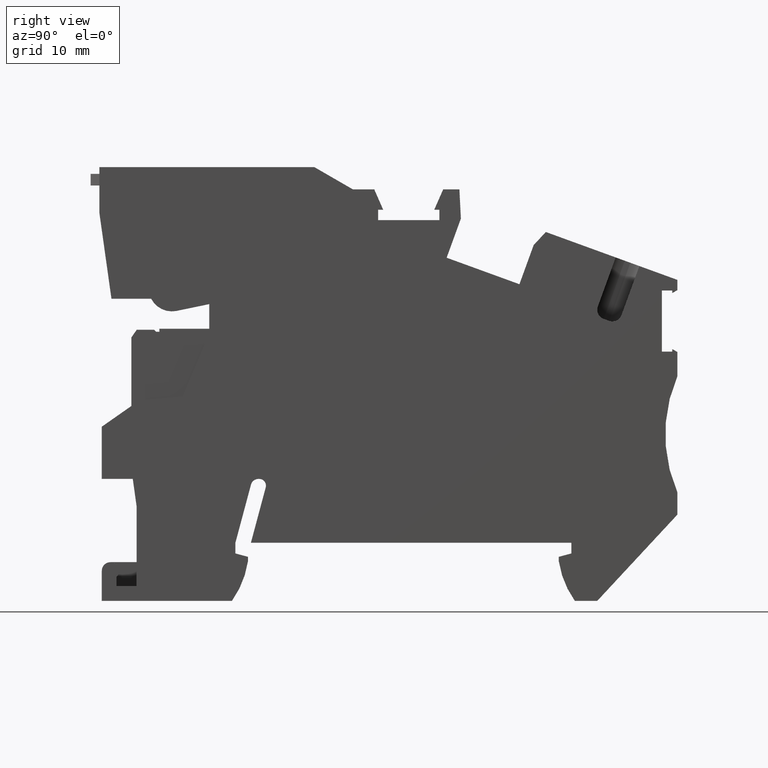
[diagram: clean part render]
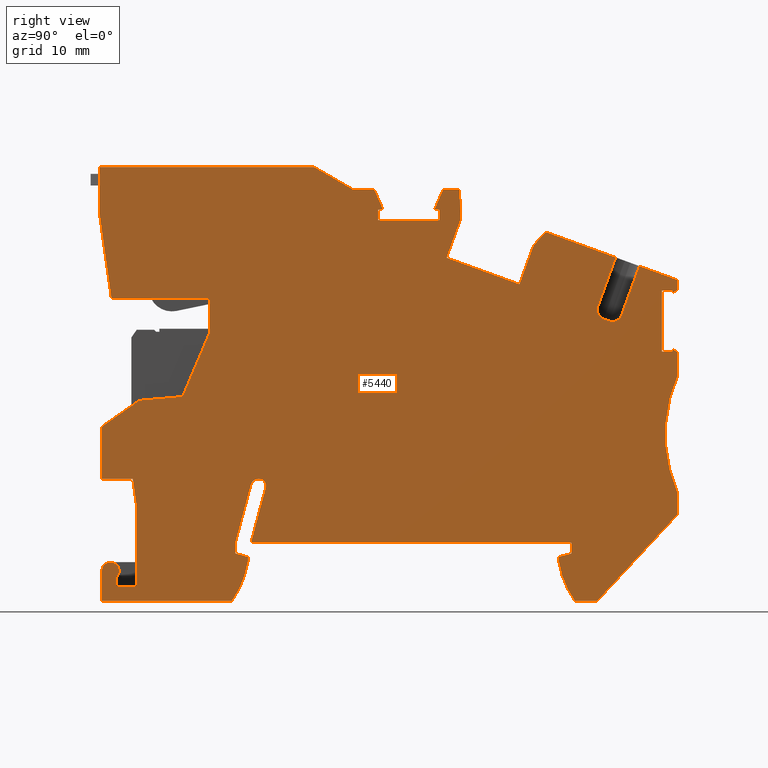
[diagram: same view with one face highlighted and labeled with its STEP entity id]
A machine part, right view. The second image highlights one B-rep face of the part: STEP entity #5440.
In plain terms, the highlighted planar face has unit normal (1, -0, -0).
Its self-contained STEP definition (entity closure, byte-faithful):
#10=CARTESIAN_POINT('',(36.8692538360223,4.76087886167959,
-1.4121310698556E-7));
#20=DIRECTION('',(-1.46818254392172E-27,-1.29932758798692E-27,1.));
#30=DIRECTION('',(0.992546151641322,0.121869343405147,
1.61558713389263E-27));
#40=AXIS2_PLACEMENT_3D('',#10,#20,#30);
#50=PLANE('',#40);
#60=CARTESIAN_POINT('',(55.889754438691,0.,-1.4121310698556E-7));
#70=DIRECTION('',(-0.586197188888753,-0.810168411960701,0.));
#80=VECTOR('',#70,1.);
#90=LINE('',#60,#80);
#100=CARTESIAN_POINT('',(63.534747480636,10.5659528732721,
-1.4121310698556E-7));
#110=VERTEX_POINT('',#100);
#120=CARTESIAN_POINT('',(56.4045203996391,0.71144510587516,
-1.4121310698556E-7));
#130=VERTEX_POINT('',#120);
#140=EDGE_CURVE('',#110,#130,#90,.T.);
#150=ORIENTED_EDGE('',*,*,#140,.F.);
#160=CARTESIAN_POINT('',(-2.83984688191907E-5,-6.21416265122162,
-1.4121310698556E-7));
#170=DIRECTION('',(-0.992546151641334,-0.121869343405055,
-1.61558713389257E-27));
#180=VECTOR('',#170,1.);
#190=LINE('',#160,#180);
#200=CARTESIAN_POINT('',(54.1087467529175,0.429559546730218,
-1.4121310698556E-7));
#210=VERTEX_POINT('',#200);
#220=EDGE_CURVE('',#130,#210,#190,.T.);
#230=ORIENTED_EDGE('',*,*,#220,.F.);
#240=CARTESIAN_POINT('',(61.1139653072747,6.84648349872392,
-1.4121310698556E-7));
#250=DIRECTION('',(1.47043672733197E-27,1.29373188456246E-27,-1.));
#260=DIRECTION('',(-0.992546151641326,-0.121869343405112,
-1.61558713389263E-27));
#270=AXIS2_PLACEMENT_3D('',#240,#250,#260);
#280=CIRCLE('',#270,9.499999999999);
#290=CARTESIAN_POINT('',(51.9625043062499,4.29682439470574,
-1.4121310698556E-7));
#300=VERTEX_POINT('',#290);
#310=EDGE_CURVE('',#210,#300,#280,.T.);
#320=ORIENTED_EDGE('',*,*,#310,.F.);
#330=CARTESIAN_POINT('',(52.4900884309633,-3.48688567086697E-6,
-1.4121310698556E-7));
#340=DIRECTION('',(-0.121869343404427,0.992546151641411,
1.1107161545523E-27));
#350=VECTOR('',#340,1.);
#360=LINE('',#330,#350);
#370=CARTESIAN_POINT('',(51.9074600613178,4.74512379430182,
-1.4121310698556E-7));
#380=VERTEX_POINT('',#370);
#390=EDGE_CURVE('',#300,#380,#360,.T.);
#400=ORIENTED_EDGE('',*,*,#390,.F.);
#410=CARTESIAN_POINT('',(-2.83984691762385E-5,-16.2268628606818,
-1.4121310698556E-7));
#420=DIRECTION('',(0.927183854566826,0.374606593415818,
1.84801183174807E-27));
#430=VECTOR('',#420,1.);
#440=LINE('',#410,#430);
#450=CARTESIAN_POINT('',(53.15531882866,5.24929146244623,
-1.4121310698556E-7));
#460=VERTEX_POINT('',#450);
#470=EDGE_CURVE('',#380,#460,#440,.T.);
#480=ORIENTED_EDGE('',*,*,#470,.F.);
#490=CARTESIAN_POINT('',(53.7998512040633,-3.48688571705225E-6,
-1.4121310698556E-7));
#500=DIRECTION('',(-0.121869343405112,0.992546151641326,
1.11071615455118E-27));
#510=VECTOR('',#500,1.);
#520=LINE('',#490,#510);
#530=CARTESIAN_POINT('',(53.0212625509141,6.34109222925396,
-1.4121310698556E-7));
#540=VERTEX_POINT('',#530);
#550=EDGE_CURVE('',#460,#540,#520,.T.);
#560=ORIENTED_EDGE('',*,*,#550,.F.);
#570=CARTESIAN_POINT('',(-2.83984678484117E-5,-0.169103698471897,
-1.4121310698556E-7));
#580=DIRECTION('',(-0.992546151641326,-0.121869343405112,
-1.61558713389263E-27));
#590=VECTOR('',#580,1.);
#600=LINE('',#570,#590);
#610=CARTESIAN_POINT('',(20.1679849315951,2.30721696254584,
-1.4121310698556E-7));
#620=VERTEX_POINT('',#610);
#630=EDGE_CURVE('',#540,#620,#600,.T.);
#640=ORIENTED_EDGE('',*,*,#630,.F.);
#650=CARTESIAN_POINT('',(19.8437262437901,-3.48688005402664E-6,
-1.4121310698556E-7));
#660=DIRECTION('',(0.139173100960161,0.990268068741557,
1.49101413863156E-27));
#670=VECTOR('',#660,1.);
#680=LINE('',#650,#670);
#690=CARTESIAN_POINT('',(20.9919683262173,8.17016346038412,
-1.4121310698556E-7));
#700=VERTEX_POINT('',#690);
#710=EDGE_CURVE('',#620,#700,#680,.T.);
#720=ORIENTED_EDGE('',*,*,#710,.F.);
#730=CARTESIAN_POINT('',(20.2987806780982,8.26758463105624,
-1.4121310698556E-7));
#740=DIRECTION('',(-1.47043672733197E-27,-1.29373188456246E-27,1.));
#750=DIRECTION('',(1.,-3.56659146660832E-14,1.46818254392172E-27));
#760=AXIS2_PLACEMENT_3D('',#730,#740,#750);
#770=CIRCLE('',#760,0.7);
#780=CARTESIAN_POINT('',(20.2134721377148,8.96236693720519,
-1.4121310698556E-7));
#790=VERTEX_POINT('',#780);
#800=EDGE_CURVE('',#700,#790,#770,.T.);
#810=ORIENTED_EDGE('',*,*,#800,.F.);
#820=CARTESIAN_POINT('',(-2.8398459382295E-5,6.48046114956115,
-1.4121310698556E-7));
#830=DIRECTION('',(0.992546151641326,0.121869343405112,
1.61558713389263E-27));
#840=VECTOR('',#830,1.);
#850=LINE('',#820,#840);
#860=CARTESIAN_POINT('',(20.1401421842377,8.95336315106648,
-1.4121310698556E-7));
#870=VERTEX_POINT('',#860);
#880=EDGE_CURVE('',#870,#790,#850,.T.);
#890=ORIENTED_EDGE('',*,*,#880,.T.);
#900=CARTESIAN_POINT('',(20.2376376589615,8.15932622975338,
-1.4121310698556E-7));
#910=DIRECTION('',(-1.47043672733197E-27,-1.29373188456246E-27,1.));
#920=DIRECTION('',(1.,-3.56659146660832E-14,1.46818254392172E-27));
#930=AXIS2_PLACEMENT_3D('',#900,#910,#920);
#940=CIRCLE('',#930,0.8);
#950=CARTESIAN_POINT('',(19.4454232039683,8.27066471052162,
-1.4121310698556E-7));
#960=VERTEX_POINT('',#950);
#970=EDGE_CURVE('',#870,#960,#940,.T.);
#980=ORIENTED_EDGE('',*,*,#970,.F.);
#990=CARTESIAN_POINT('',(18.2830565919569,-3.48687999363051E-6,
-1.4121310698556E-7));
#1000=DIRECTION('',(0.139173100960302,0.990268068741537,
1.49101413863174E-27));
#1010=VECTOR('',#1000,1.);
#1020=LINE('',#990,#1010);
#1030=CARTESIAN_POINT('',(18.5799110889686,2.11222601310684,
-1.4121310698556E-7));
#1040=VERTEX_POINT('',#1030);
#1050=EDGE_CURVE('',#1040,#960,#1020,.T.);
#1060=ORIENTED_EDGE('',*,*,#1050,.T.);
#1070=CARTESIAN_POINT('',(18.8392602606505,-3.48688001139408E-6,
-1.4121310698556E-7));
#1080=DIRECTION('',(0.121869343405112,-0.992546151641326,
-1.11071615455118E-27));
#1090=VECTOR('',#1080,1.);
#1100=LINE('',#1070,#1090);
#1110=CARTESIAN_POINT('',(18.7139673667152,1.02042524629326,
-1.4121310698556E-7));
#1120=VERTEX_POINT('',#1110);
#1130=EDGE_CURVE('',#1040,#1120,#1100,.T.);
#1140=ORIENTED_EDGE('',*,*,#1130,.F.);
#1150=CARTESIAN_POINT('',(-2.83984594835474E-5,3.65050583175063,
-1.4121310698556E-7));
#1160=DIRECTION('',(0.990268068741551,-0.139173100960206,
1.27306284274619E-27));
#1170=VECTOR('',#1160,1.);
#1180=LINE('',#1150,#1170);
#1190=CARTESIAN_POINT('',(20.04672859364,0.833117871002074,
-1.4121310698556E-7));
#1200=VERTEX_POINT('',#1190);
#1210=EDGE_CURVE('',#1120,#1200,#1180,.T.);
#1220=ORIENTED_EDGE('',*,*,#1210,.F.);
#1230=CARTESIAN_POINT('',(20.1490230337469,-3.48688006113207E-6,
-1.4121310698556E-7));
#1240=DIRECTION('',(0.121869343405737,-0.99254615164125,
-1.11071615455017E-27));
#1250=VECTOR('',#1240,1.);
#1260=LINE('',#1230,#1250);
#1270=CARTESIAN_POINT('',(20.1017728385727,0.384818471405851,
-1.4121310698556E-7));
#1280=VERTEX_POINT('',#1270);
#1290=EDGE_CURVE('',#1200,#1280,#1260,.T.);
#1300=ORIENTED_EDGE('',*,*,#1290,.F.);
#1310=CARTESIAN_POINT('',(10.6053309765199,0.64480301062201,
-1.4121310698556E-7));
#1320=DIRECTION('',(-1.47043672733197E-27,-1.29373188456246E-27,1.));
#1330=DIRECTION('',(0.992546151641326,0.121869343405112,
1.61558713389263E-27));
#1340=AXIS2_PLACEMENT_3D('',#1310,#1320,#1330);
#1350=CIRCLE('',#1340,9.49999999999899);
#1360=CARTESIAN_POINT('',(18.9548590108741,-3.88679511846146,
-1.4121310698556E-7));
#1370=VERTEX_POINT('',#1360);
#1380=EDGE_CURVE('',#1370,#1280,#1350,.T.);
#1390=ORIENTED_EDGE('',*,*,#1380,.T.);
#1400=CARTESIAN_POINT('',(-2.83984599462883E-5,-6.21416265122058,
-1.4121310698556E-7));
#1410=DIRECTION('',(0.992546151641325,0.121869343405127,
1.61558713389265E-27));
#1420=VECTOR('',#1410,1.);
#1430=LINE('',#1400,#1420);
#1440=CARTESIAN_POINT('',(5.6139902561052,-5.52484783057877,
-1.4121310698556E-7));
#1450=VERTEX_POINT('',#1440);
#1460=EDGE_CURVE('',#1450,#1370,#1430,.T.);
#1470=ORIENTED_EDGE('',*,*,#1460,.T.);
#1480=CARTESIAN_POINT('',(5.04037038539804,-0.853088885553358,
-1.4121310698556E-7));
#1490=DIRECTION('',(0.121869343404729,-0.992546151641373,
-1.11071615455181E-27));
#1500=VECTOR('',#1490,1.);
#1510=LINE('',#1480,#1500);
#1520=CARTESIAN_POINT('',(5.2361952915502,-2.44795476048773,
-1.4121310698556E-7));
#1530=VERTEX_POINT('',#1520);
#1540=EDGE_CURVE('',#1530,#1450,#1510,.T.);
#1550=ORIENTED_EDGE('',*,*,#1540,.T.);
#1560=CARTESIAN_POINT('',(6.12948682808219,-2.33827235141673,
-1.4121310698556E-7));
#1570=DIRECTION('',(3.53960909945283E-14,4.34609349043523E-15,1.));
#1580=DIRECTION('',(-1.,3.56659146660832E-14,3.53960909945281E-14));
#1590=AXIS2_PLACEMENT_3D('',#1560,#1570,#1580);
#1600=CIRCLE('',#1590,0.89999999999984);
#1610=CARTESIAN_POINT('',(6.80676695993457,-2.9309709451368,
-1.41213128382706E-7));
#1620=VERTEX_POINT('',#1610);
#1630=EDGE_CURVE('',#1620,#1530,#1600,.T.);
#1640=ORIENTED_EDGE('',*,*,#1630,.T.);
#1650=CARTESIAN_POINT('',(2.76695388729833,29.9706662221065,
-1.4121310698556E-7));
#1660=DIRECTION('',(0.121869343407215,-0.992546151641068,
-1.11071615454776E-27));
#1670=VECTOR('',#1660,1.);
#1680=LINE('',#1650,#1670);
#1690=CARTESIAN_POINT('',(6.92001145308142,-3.85327332836928,
-1.4121310698556E-7));
#1700=VERTEX_POINT('',#1690);
#1710=EDGE_CURVE('',#1620,#1700,#1680,.T.);
#1720=ORIENTED_EDGE('',*,*,#1710,.F.);
#1730=CARTESIAN_POINT('',(9.07053834346899,-3.58922182842323,
-1.4121310698556E-7));
#1740=DIRECTION('',(0.992546151641326,0.121869343405112,
1.61558713389263E-27));
#1750=VECTOR('',#1740,1.);
#1760=LINE('',#1730,#1750);
#1770=CARTESIAN_POINT('',(9.00435837147232,-3.59734770722541,
-1.4121310698556E-7));
#1780=VERTEX_POINT('',#1770);
#1790=EDGE_CURVE('',#1700,#1780,#1760,.T.);
#1800=ORIENTED_EDGE('',*,*,#1790,.F.);
#1810=CARTESIAN_POINT('',(8.56265961282526,3.5775826745521E-12,
-1.4121310698556E-7));
#1820=DIRECTION('',(-0.121869343405112,0.992546151641326,
1.11071615455118E-27));
#1830=VECTOR('',#1820,1.);
#1840=LINE('',#1810,#1830);
#1850=CARTESIAN_POINT('',(7.9984608500192,4.59503017853219,
-1.4121310698556E-7));
#1860=VERTEX_POINT('',#1850);
#1870=EDGE_CURVE('',#1780,#1860,#1840,.T.);
#1880=ORIENTED_EDGE('',*,*,#1870,.F.);
#1890=CARTESIAN_POINT('',(9.22969547505618,3.5527136788005E-12,
-1.4121310698556E-7));
#1900=DIRECTION('',(0.258819045005162,-0.965925826315156,
-8.75060470169217E-28));
#1910=VECTOR('',#1900,1.);
#1920=LINE('',#1890,#1910);
#1930=CARTESIAN_POINT('',(7.25458421464846,7.37121557741849,
-1.4121310698556E-7));
#1940=VERTEX_POINT('',#1930);
#1950=EDGE_CURVE('',#1940,#1860,#1920,.T.);
#1960=ORIENTED_EDGE('',*,*,#1950,.T.);
#1970=CARTESIAN_POINT('',(9.1970875359948E-12,6.48046464083311,
-1.4121310698556E-7));
#1980=DIRECTION('',(-0.992546151653606,-0.121869343305105,
-1.61558713378072E-27));
#1990=VECTOR('',#1980,1.);
#2000=LINE('',#1970,#1990);
#2010=CARTESIAN_POINT('',(4.07843652935664,6.98123367884212,
-1.4121310698556E-7));
#2020=VERTEX_POINT('',#2010);
#2030=EDGE_CURVE('',#1940,#2020,#2000,.T.);
#2040=ORIENTED_EDGE('',*,*,#2030,.F.);
#2050=CARTESIAN_POINT('',(4.93562466930855,-3.48687941453818E-6,
-1.4121310698556E-7));
#2060=DIRECTION('',(0.121869343405112,-0.992546151641326,
-1.11071615455118E-27));
#2070=VECTOR('',#2060,1.);
#2080=LINE('',#2050,#2070);
#2090=CARTESIAN_POINT('',(3.42146049554396,12.3318740930909,
-1.4121310698556E-7));
#2100=VERTEX_POINT('',#2090);
#2110=EDGE_CURVE('',#2100,#2020,#2080,.T.);
#2120=ORIENTED_EDGE('',*,*,#2110,.T.);
#2130=CARTESIAN_POINT('',(9.29922805426031E-12,9.25117722550641,
-1.4121310698556E-7));
#2140=DIRECTION('',(-0.743144825477418,-0.669130606358832,
-1.96049211718015E-27));
#2150=VECTOR('',#2140,1.);
#2160=LINE('',#2130,#2150);
#2170=CARTESIAN_POINT('',(6.94434058439101,15.5038895726649,
-1.4121310698556E-7));
#2180=VERTEX_POINT('',#2170);
#2190=EDGE_CURVE('',#2180,#2100,#2160,.T.);
#2200=ORIENTED_EDGE('',*,*,#2190,.T.);
#2210=CARTESIAN_POINT('',(9.46975831084274E-12,14.0278244149189,
-1.4121310698556E-7));
#2220=DIRECTION('',(-0.978147600731964,-0.207911690826424,
-1.7062446285294E-27));
#2230=VECTOR('',#2220,1.);
#2240=LINE('',#2210,#2230);
#2250=CARTESIAN_POINT('',(11.3190889981281,16.4337710537007,
-1.4121310698556E-7));
#2260=VERTEX_POINT('',#2250);
#2270=EDGE_CURVE('',#2260,#2180,#2240,.T.);
#2280=ORIENTED_EDGE('',*,*,#2270,.T.);
#2290=CARTESIAN_POINT('',(6.60678097786328,3.64153152077051E-12,
-1.4121310698556E-7));
#2300=DIRECTION('',(-0.275637355817027,-0.961261695938311,
-1.65367979507101E-27));
#2310=VECTOR('',#2300,1.);
#2320=LINE('',#2290,#2310);
#2330=CARTESIAN_POINT('',(13.2670711395677,23.2271921101009,
-1.4121310698556E-7));
#2340=VERTEX_POINT('',#2330);
#2350=EDGE_CURVE('',#2340,#2260,#2320,.T.);
#2360=ORIENTED_EDGE('',*,*,#2350,.T.);
#2370=CARTESIAN_POINT('',(11.1231810234684,40.6877759191291,
-1.4121310698556E-7));
#2380=DIRECTION('',(0.121869343405111,-0.992546151641327,
-1.11071615455119E-27));
#2390=VECTOR('',#2380,1.);
#2400=LINE('',#2370,#2390);
#2410=CARTESIAN_POINT('',(12.8289570113008,26.7953453457004,
-1.4121310698556E-7));
#2420=VERTEX_POINT('',#2410);
#2430=EDGE_CURVE('',#2420,#2340,#2400,.T.);
#2440=ORIENTED_EDGE('',*,*,#2430,.T.);
#2450=CARTESIAN_POINT('',(9.86588588602899E-12,25.2201474922313,
-1.4121310698556E-7));
#2460=DIRECTION('',(-0.992546151641364,-0.121869343404808,
-1.61558713389229E-27));
#2470=VECTOR('',#2460,1.);
#2480=LINE('',#2450,#2470);
#2490=CARTESIAN_POINT('',(2.80349446799856,25.564373329476,
-1.4121310698556E-7));
#2500=VERTEX_POINT('',#2490);
#2510=EDGE_CURVE('',#2420,#2500,#2480,.T.);
#2520=ORIENTED_EDGE('',*,*,#2510,.F.);
#2530=CARTESIAN_POINT('',(9.65344765663683,3.5385028240853E-12,
-1.4121310698556E-7));
#2540=DIRECTION('',(0.258819045102464,-0.965925826289084,
-8.75060469992483E-28));
#2550=VECTOR('',#2540,1.);
#2560=LINE('',#2530,#2550);
#2570=CARTESIAN_POINT('',(0.480226044667061,34.2349291249717,
-1.4121310698556E-7));
#2580=VERTEX_POINT('',#2570);
#2590=EDGE_CURVE('',#2580,#2500,#2560,.T.);
#2600=ORIENTED_EDGE('',*,*,#2590,.T.);
#2610=CARTESIAN_POINT('',(4.68374678481707,3.71613850802532E-12,
-1.4121310698556E-7));
#2620=DIRECTION('',(0.121869343405112,-0.992546151641326,
-1.11071615455118E-27));
#2630=VECTOR('',#2620,1.);
#2640=LINE('',#2610,#2630);
#2650=CARTESIAN_POINT('',(-0.0938929381966772,38.9107530122918,
-1.4121310698556E-7));
#2660=VERTEX_POINT('',#2650);
#2670=EDGE_CURVE('',#2660,#2580,#2640,.T.);
#2680=ORIENTED_EDGE('',*,*,#2670,.T.);
#2690=CARTESIAN_POINT('',(1.03543840168641E-11,38.9222816154814,
-1.4121310698556E-7));
#2700=DIRECTION('',(-0.992546151641326,-0.121869343405112,
-1.61558713389263E-27));
#2710=VECTOR('',#2700,1.);
#2720=LINE('',#2690,#2710);
#2730=CARTESIAN_POINT('',(21.9437478299359,41.6166350573421,
-1.4121310698556E-7));
#2740=VERTEX_POINT('',#2730);
#2750=EDGE_CURVE('',#2740,#2660,#2720,.T.);
#2760=ORIENTED_EDGE('',*,*,#2750,.T.);
#2770=CARTESIAN_POINT('',(1.07824860151595E-11,50.9312033844004,
-1.4121310698556E-7));
#2780=DIRECTION('',(0.920504853452426,-0.390731128489307,
8.43781422702718E-28));
#2790=VECTOR('',#2780,1.);
#2800=LINE('',#2770,#2790);
#2810=CARTESIAN_POINT('',(26.178071250852,39.8192714014765,
-1.4121310698556E-7));
#2820=VERTEX_POINT('',#2810);
#2830=EDGE_CURVE('',#2740,#2820,#2800,.T.);
#2840=ORIENTED_EDGE('',*,*,#2830,.F.);
#2850=CARTESIAN_POINT('',(1.02708952454122E-11,36.605008417658,
-1.4121310698556E-7));
#2860=DIRECTION('',(0.992546151641326,0.121869343405112,
1.61558713389263E-27));
#2870=VECTOR('',#2860,1.);
#2880=LINE('',#2850,#2870);
#2890=CARTESIAN_POINT('',(28.3651633164592,40.0878125404063,
-1.4121310698556E-7));
#2900=VERTEX_POINT('',#2890);
#2910=EDGE_CURVE('',#2820,#2900,#2880,.T.);
#2920=ORIENTED_EDGE('',*,*,#2910,.F.);
#2930=CARTESIAN_POINT('',(52.189647198695,2.01794136955868E-12,
-1.4121310698556E-7));
#2940=DIRECTION('',(-0.510892985900382,0.859644320028808,
3.66875417158635E-28));
#2950=VECTOR('',#2940,1.);
#2960=LINE('',#2930,#2950);
#2970=CARTESIAN_POINT('',(29.5398559227793,38.1112384736802,
-1.4121310698556E-7));
#2980=VERTEX_POINT('',#2970);
#2990=EDGE_CURVE('',#2980,#2900,#2960,.T.);
#3000=ORIENTED_EDGE('',*,*,#2990,.T.);
#3010=CARTESIAN_POINT('',(1.01962882581574E-11,34.484200235069,
-1.4121310698556E-7));
#3020=DIRECTION('',(-0.992546151641326,-0.121869343405112,
-1.61558713389263E-27));
#3030=VECTOR('',#3020,1.);
#3040=LINE('',#3010,#3030);
#3050=CARTESIAN_POINT('',(29.0158923308155,38.0469038341118,
-1.4121310698556E-7));
#3060=VERTEX_POINT('',#3050);
#3070=EDGE_CURVE('',#2980,#3060,#3040,.T.);
#3080=ORIENTED_EDGE('',*,*,#3070,.F.);
#3090=CARTESIAN_POINT('',(33.6874647118002,2.68229882749438E-12,
-1.4121310698556E-7));
#3100=DIRECTION('',(0.121869343405112,-0.992546151641326,
-1.11071615455118E-27));
#3110=VECTOR('',#3100,1.);
#3120=LINE('',#3090,#3110);
#3130=CARTESIAN_POINT('',(29.1462925282582,36.9848794518617,
-1.4121310698556E-7));
#3140=VERTEX_POINT('',#3130);
#3150=EDGE_CURVE('',#3060,#3140,#3120,.T.);
#3160=ORIENTED_EDGE('',*,*,#3150,.F.);
#3170=CARTESIAN_POINT('',(1.01580965861103E-11,33.4061647218342,
-1.4121310698556E-7));
#3180=DIRECTION('',(0.992546151641326,0.121869343405112,
1.61558713389263E-27));
#3190=VECTOR('',#3180,1.);
#3200=LINE('',#3170,#3190);
#3210=CARTESIAN_POINT('',(35.4241469374044,37.7557030489009,
-1.4121310698556E-7));
#3220=VERTEX_POINT('',#3210);
#3230=EDGE_CURVE('',#3140,#3220,#3200,.T.);
#3240=ORIENTED_EDGE('',*,*,#3230,.F.);
#3250=CARTESIAN_POINT('',(40.0599643578425,2.45847786572995E-12,
-1.4121310698556E-7));
#3260=DIRECTION('',(0.121869343405112,-0.992546151641326,
-1.11071615455118E-27));
#3270=VECTOR('',#3260,1.);
#3280=LINE('',#3250,#3270);
#3290=CARTESIAN_POINT('',(35.2937467399614,38.8177274311539,
-1.4121310698556E-7));
#3300=VERTEX_POINT('',#3290);
#3310=EDGE_CURVE('',#3300,#3220,#3280,.T.);
#3320=ORIENTED_EDGE('',*,*,#3310,.T.);
#3330=CARTESIAN_POINT('',(1.01962882581574E-11,34.4842002350719,
-1.4121310698556E-7));
#3340=DIRECTION('',(0.992546151641326,0.121869343405112,
1.61558713389263E-27));
#3350=VECTOR('',#3340,1.);
#3360=LINE('',#3330,#3350);
#3370=CARTESIAN_POINT('',(34.7697831479974,38.7533927915855,
-1.4121310698556E-7));
#3380=VERTEX_POINT('',#3370);
#3390=EDGE_CURVE('',#3380,#3300,#3360,.T.);
#3400=ORIENTED_EDGE('',*,*,#3390,.T.);
#3410=CARTESIAN_POINT('',(23.1260063244413,3.05533376376843E-12,
-1.4121310698556E-7));
#3420=DIRECTION('',(0.287750497361348,0.957705409438778,
1.66684331687881E-27));
#3430=VECTOR('',#3420,1.);
#3440=LINE('',#3410,#3430);
#3450=CARTESIAN_POINT('',(35.4314058185834,40.9554380232636,
-1.4121310698556E-7));
#3460=VERTEX_POINT('',#3450);
#3470=EDGE_CURVE('',#3380,#3460,#3440,.T.);
#3480=ORIENTED_EDGE('',*,*,#3470,.F.);
#3490=CARTESIAN_POINT('',(1.02708952454122E-11,36.6050084176587,
-1.4121310698556E-7));
#3500=DIRECTION('',(0.992546151641326,0.121869343405112,
1.61558713389263E-27));
#3510=VECTOR('',#3500,1.);
#3520=LINE('',#3490,#3510);
#3530=CARTESIAN_POINT('',(37.0933696716926,41.159501525204,
-1.4121310698556E-7));
#3540=VERTEX_POINT('',#3530);
#3550=EDGE_CURVE('',#3460,#3540,#3520,.T.);
#3560=ORIENTED_EDGE('',*,*,#3550,.F.);
#3570=CARTESIAN_POINT('',(44.2851429858332,2.30215846386272E-12,
-1.4121310698556E-7));
#3580=DIRECTION('',(0.172121645908456,-0.985075702172054,
-1.02723004013381E-27));
#3590=VECTOR('',#3580,1.);
#3600=LINE('',#3570,#3590);
#3610=CARTESIAN_POINT('',(37.6132890069067,38.1839321161056,
-1.4121310698556E-7));
#3620=VERTEX_POINT('',#3610);
#3630=EDGE_CURVE('',#3540,#3620,#3600,.T.);
#3640=ORIENTED_EDGE('',*,*,#3630,.F.);
#3650=CARTESIAN_POINT('',(28.797832864064,-3.48688026718946E-6,
-1.4121310698556E-7));
#3660=DIRECTION('',(0.224951054346927,0.974370064784528,
1.59629511731205E-27));
#3670=VECTOR('',#3660,1.);
#3680=LINE('',#3650,#3670);
#3690=CARTESIAN_POINT('',(36.6459994732511,33.9941408376883,
-1.4121310698556E-7));
#3700=VERTEX_POINT('',#3690);
#3710=EDGE_CURVE('',#3700,#3620,#3680,.T.);
#3720=ORIENTED_EDGE('',*,*,#3710,.T.);
#3730=CARTESIAN_POINT('',(0.00267588130750251,42.4539186721907,
-1.4121310698556E-7));
#3740=DIRECTION('',(-0.974370064785227,0.2249510543439,
-1.13826800958183E-27));
#3750=VECTOR('',#3740,1.);
#3760=LINE('',#3730,#3750);
#3770=CARTESIAN_POINT('',(44.4409599914829,32.1945324029487,
-1.4121310698556E-7));
#3780=VERTEX_POINT('',#3770);
#3790=EDGE_CURVE('',#3780,#3700,#3760,.T.);
#3800=ORIENTED_EDGE('',*,*,#3790,.T.);
#3810=CARTESIAN_POINT('',(37.0082657264698,-3.48688056561741E-6,
-1.4121310698556E-7));
#3820=DIRECTION('',(-0.224951054343901,-0.974370064785227,
-1.59629511730851E-27));
#3830=VECTOR('',#3820,1.);
#3840=LINE('',#3810,#3830);
#3850=CARTESIAN_POINT('',(45.4082495251622,36.3843236815277,
-1.4121310698556E-7));
#3860=VERTEX_POINT('',#3850);
#3870=EDGE_CURVE('',#3860,#3780,#3840,.T.);
#3880=ORIENTED_EDGE('',*,*,#3870,.T.);
#3890=CARTESIAN_POINT('',(19.0595493809518,-3.48687992257624E-6,
-1.4121310698556E-7));
#3900=DIRECTION('',(-0.58653067581701,-0.809927012962058,
-1.91349461190657E-27));
#3910=VECTOR('',#3900,1.);
#3920=LINE('',#3890,#3910);
#3930=CARTESIAN_POINT('',(46.4907509106196,37.8791254878092,
-1.4121310698556E-7));
#3940=VERTEX_POINT('',#3930);
#3950=EDGE_CURVE('',#3940,#3860,#3920,.T.);
#3960=ORIENTED_EDGE('',*,*,#3950,.T.);
#3970=CARTESIAN_POINT('',(-2.83984579940721E-5,48.6123676109317,
-1.4121310698556E-7));
#3980=DIRECTION('',(-0.974370064785153,0.224951054344223,
-1.1382680095813E-27));
#3990=VECTOR('',#3980,1.);
#4000=LINE('',#3970,#3990);
#4010=CARTESIAN_POINT('',(53.9753748330596,36.1511639015774,
-1.4121310698556E-7));
#4020=VERTEX_POINT('',#4010);
#4030=EDGE_CURVE('',#4020,#3940,#4000,.T.);
#4040=ORIENTED_EDGE('',*,*,#4030,.T.);
#4050=CARTESIAN_POINT('',(54.0008235516693,36.2613944122011,
-1.4121310698556E-7));
#4060=DIRECTION('',(-0.224951054470677,-0.974370064755959,
-1.59629511745661E-27));
#4070=VECTOR('',#4060,1.);
#4080=LINE('',#4050,#4070);
#4090=CARTESIAN_POINT('',(52.7605465346124,30.8891644385801,
-1.4121310698556E-7));
#4100=VERTEX_POINT('',#4090);
#4110=EDGE_CURVE('',#4020,#4100,#4080,.T.);
#4120=ORIENTED_EDGE('',*,*,#4110,.F.);
#4130=CARTESIAN_POINT('',(53.7350092267028,30.6646145035782,
-1.41215128479644E-7));
#4140=DIRECTION('',(2.24977625958046E-12,7.59117980544477E-13,1.));
#4150=DIRECTION('',(-0.974370064786396,0.224951054338838,
2.02135024971126E-12));
#4160=AXIS2_PLACEMENT_3D('',#4130,#4140,#4150);
#4170=CIRCLE('',#4160,1.00000010579271);
#4180=CARTESIAN_POINT('',(53.5100580872165,29.6902440694974,
-1.41213107160779E-7));
#4190=VERTEX_POINT('',#4180);
#4200=EDGE_CURVE('',#4100,#4190,#4170,.T.);
#4210=ORIENTED_EDGE('',*,*,#4200,.F.);
#4220=CARTESIAN_POINT('',(3.56864194189837,41.2201284768079,
-1.41213106097382E-7));
#4230=DIRECTION('',(-0.97437006478698,0.224951054336306,
-1.13826800959427E-27));
#4240=VECTOR('',#4230,1.);
#4250=LINE('',#4220,#4240);
#4260=CARTESIAN_POINT('',(54.0946801874136,29.5552737029754,
7.75811222629578E-8));
#4270=VERTEX_POINT('',#4260);
#4280=EDGE_CURVE('',#4270,#4190,#4250,.T.);
#4290=ORIENTED_EDGE('',*,*,#4280,.T.);
#4300=CARTESIAN_POINT('',(54.3196312655791,30.5296438709739,
-1.41211085491477E-7));
#4310=DIRECTION('',(-2.24977625958046E-12,-7.59117980544477E-13,-1.));
#4320=DIRECTION('',(0.974370064786398,-0.224951054338829,
-2.02135024971127E-12));
#4330=AXIS2_PLACEMENT_3D('',#4300,#4310,#4320);
#4340=CIRCLE('',#4330,1.00000010592658);
#4350=CARTESIAN_POINT('',(55.2940013410599,30.304692814159,
-1.4121310698556E-7));
#4360=VERTEX_POINT('',#4350);
#4370=EDGE_CURVE('',#4360,#4270,#4340,.T.);
#4380=ORIENTED_EDGE('',*,*,#4370,.T.);
#4390=CARTESIAN_POINT('',(56.7470620227438,36.5985900970066,
-1.41213107873739E-7));
#4400=DIRECTION('',(0.224951054470676,0.974370064755959,
1.59629511745661E-27));
#4410=VECTOR('',#4400,1.);
#4420=LINE('',#4390,#4410);
#4430=CARTESIAN_POINT('',(56.5087370327162,35.5662911530759,
-1.4121310698556E-7));
#4440=VERTEX_POINT('',#4430);
#4450=EDGE_CURVE('',#4360,#4440,#4420,.T.);
#4460=ORIENTED_EDGE('',*,*,#4450,.F.);
#4470=CARTESIAN_POINT('',(2.73862175717937,47.9801004033729,
5.35173372284703E-8));
#4480=DIRECTION('',(-0.974370064785153,0.224951054344223,
3.35287353436786E-14));
#4490=VECTOR('',#4480,1.);
#4500=LINE('',#4470,#4490);
#4510=CARTESIAN_POINT('',(60.5805148085991,34.6262471832909,
-1.4121310698556E-7));
#4520=VERTEX_POINT('',#4510);
#4530=EDGE_CURVE('',#4520,#4440,#4500,.T.);
#4540=ORIENTED_EDGE('',*,*,#4530,.T.);
#4550=CARTESIAN_POINT('',(64.8320837928486,-3.48688611140346E-6,
-1.4121310698556E-7));
#4560=DIRECTION('',(-0.12186934340509,0.992546151641329,
1.11071615455122E-27));
#4570=VECTOR('',#4560,1.);
#4580=LINE('',#4550,#4570);
#4590=CARTESIAN_POINT('',(60.7093176118375,33.5772325328223,
-1.4121310698556E-7));
#4600=VERTEX_POINT('',#4590);
#4610=EDGE_CURVE('',#4600,#4520,#4580,.T.);
#4620=ORIENTED_EDGE('',*,*,#4610,.T.);
#4630=CARTESIAN_POINT('',(-2.83984690314654E-5,-12.1705410321621,
-1.4121310698556E-7));
#4640=DIRECTION('',(0.798635510048393,0.601815023150588,
1.95449757725363E-27));
#4650=VECTOR('',#4640,1.);
#4660=LINE('',#4630,#4650);
#4670=CARTESIAN_POINT('',(60.2205596395212,33.2089269832647,
-1.4121310698556E-7));
#4680=VERTEX_POINT('',#4670);
#4690=EDGE_CURVE('',#4680,#4600,#4660,.T.);
#4700=ORIENTED_EDGE('',*,*,#4690,.T.);
#4710=CARTESIAN_POINT('',(64.298103157181,1.59161572810262E-12,
-1.4121310698556E-7));
#4720=DIRECTION('',(-0.121869343404064,0.992546151641455,
1.11071615455289E-27));
#4730=VECTOR('',#4720,1.);
#4740=LINE('',#4710,#4730);
#4750=CARTESIAN_POINT('',(60.1873736885295,33.4792048646851,
-1.4121310698556E-7));
#4760=VERTEX_POINT('',#4750);
#4770=EDGE_CURVE('',#4680,#4760,#4740,.T.);
#4780=ORIENTED_EDGE('',*,*,#4770,.F.);
#4790=CARTESIAN_POINT('',(9.8960839522988E-12,26.0891246144777,
-1.4121310698556E-7));
#4800=DIRECTION('',(0.992546151641395,0.121869343404553,
1.61558713389201E-27));
#4810=VECTOR('',#4800,1.);
#4820=LINE('',#4790,#4810);
#4830=CARTESIAN_POINT('',(59.1253493062724,33.3488046672421,
-1.4121310698556E-7));
#4840=VERTEX_POINT('',#4830);
#4850=EDGE_CURVE('',#4840,#4760,#4820,.T.);
#4860=ORIENTED_EDGE('',*,*,#4850,.T.);
#4870=CARTESIAN_POINT('',(63.2200680721024,-3.48688605100733E-6,
-1.4121310698556E-7));
#4880=DIRECTION('',(-0.121869343404862,0.992546151641357,
1.11071615455159E-27));
#4890=VECTOR('',#4880,1.);
#4900=LINE('',#4870,#4890);
#4910=CARTESIAN_POINT('',(59.896172903308,27.0709502581111,
-1.4121310698556E-7));
#4920=VERTEX_POINT('',#4910);
#4930=EDGE_CURVE('',#4920,#4840,#4900,.T.);
#4940=ORIENTED_EDGE('',*,*,#4930,.T.);
#4950=CARTESIAN_POINT('',(9.66871027685556E-12,19.7166249684124,
-1.4121310698556E-7));
#4960=DIRECTION('',(0.992546151641317,0.121869343405193,
1.61558713389272E-27));
#4970=VECTOR('',#4960,1.);
#4980=LINE('',#4950,#4970);
#4990=CARTESIAN_POINT('',(60.9581972855653,27.2013504555548,
-1.4121310698556E-7));
#5000=VERTEX_POINT('',#4990);
#5010=EDGE_CURVE('',#4920,#5000,#4980,.T.);
#5020=ORIENTED_EDGE('',*,*,#5010,.F.);
#5030=CARTESIAN_POINT('',(64.2981031572313,1.59161572810262E-12,
-1.4121310698556E-7));
#5040=DIRECTION('',(0.121869343405682,-0.992546151641256,
-1.11071615455026E-27));
#5050=VECTOR('',#5040,1.);
#5060=LINE('',#5030,#5050);
#5070=CARTESIAN_POINT('',(60.9250113345732,27.471628336975,
-1.4121310698556E-7));
#5080=VERTEX_POINT('',#5070);
#5090=EDGE_CURVE('',#5080,#5000,#5060,.T.);
#5100=ORIENTED_EDGE('',*,*,#5090,.T.);
#5110=CARTESIAN_POINT('',(-2.83984666982207E-5,53.3327733800551,
-1.4121310698556E-7));
#5120=DIRECTION('',(0.920504853453336,-0.390731128487163,
8.4378142270684E-28));
#5130=VECTOR('',#5120,1.);
#5140=LINE('',#5110,#5130);
#5150=CARTESIAN_POINT('',(61.4883522830017,27.232504291429,
-1.4121310698556E-7));
#5160=VERTEX_POINT('',#5150);
#5170=EDGE_CURVE('',#5080,#5160,#5140,.T.);
#5180=ORIENTED_EDGE('',*,*,#5170,.F.);
#5190=CARTESIAN_POINT('',(64.8320837928486,-3.48688611140346E-6,
-1.4121310698556E-7));
#5200=DIRECTION('',(0.12186934340509,-0.992546151641329,
-1.11071615455122E-27));
#5210=VECTOR('',#5200,1.);
#5220=LINE('',#5190,#5210);
#5230=CARTESIAN_POINT('',(61.7934902048265,24.747355347774,
-1.4121310698556E-7));
#5240=VERTEX_POINT('',#5230);
#5250=EDGE_CURVE('',#5160,#5240,#5220,.T.);
#5260=ORIENTED_EDGE('',*,*,#5250,.F.);
#5270=CARTESIAN_POINT('',(76.169959877158,20.4675049110686,
-1.4121310698556E-7));
#5280=DIRECTION('',(-1.47043672733197E-27,-1.29373188456246E-27,1.));
#5290=DIRECTION('',(0.992546151641329,0.12186934340509,
1.61558713389261E-27));
#5300=AXIS2_PLACEMENT_3D('',#5270,#5280,#5290);
#5310=CIRCLE('',#5300,15.);
#5320=CARTESIAN_POINT('',(63.2559223256796,12.836801528071,
-1.4121310698556E-7));
#5330=VERTEX_POINT('',#5320);
#5340=EDGE_CURVE('',#5240,#5330,#5310,.T.);
#5350=ORIENTED_EDGE('',*,*,#5340,.F.);
#5360=CARTESIAN_POINT('',(64.8320833647011,0.,-1.4121310698556E-7));
#5370=DIRECTION('',(0.121869343405112,-0.992546151641326,0.));
#5380=VECTOR('',#5370,1.);
#5390=LINE('',#5360,#5380);
#5400=EDGE_CURVE('',#5330,#110,#5390,.T.);
#5410=ORIENTED_EDGE('',*,*,#5400,.F.);
#5420=EDGE_LOOP('',(#5410,#5350,#5260,#5180,#5100,#5020,#4940,#4860,
#4780,#4700,#4620,#4540,#4460,#4380,#4290,#4210,#4120,#4040,#3960,#3880,
#3800,#3720,#3640,#3560,#3480,#3400,#3320,#3240,#3160,#3080,#3000,#2920,
#2840,#2760,#2680,#2600,#2520,#2440,#2360,#2280,#2200,#2120,#2040,#1960,
#1880,#1800,#1720,#1640,#1550,#1470,#1390,#1300,#1220,#1140,#1060,#980,
#890,#810,#720,#640,#560,#480,#400,#320,#230,#150));
#5430=FACE_OUTER_BOUND('',#5420,.T.);
#5440=ADVANCED_FACE('',(#5430),#50,.T.);